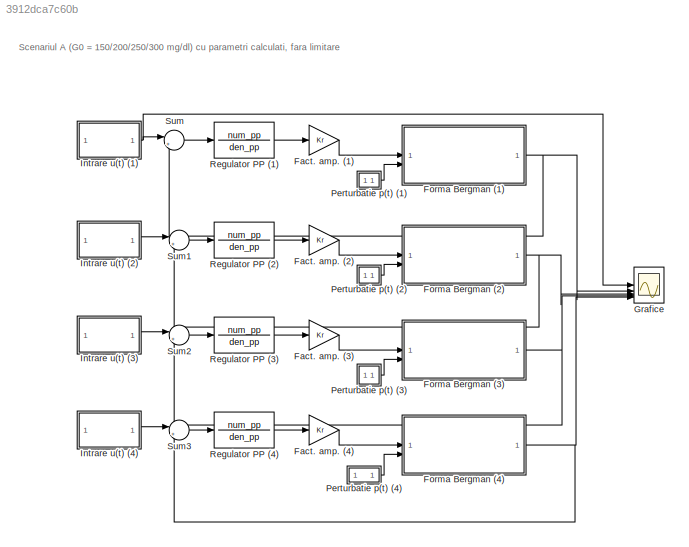
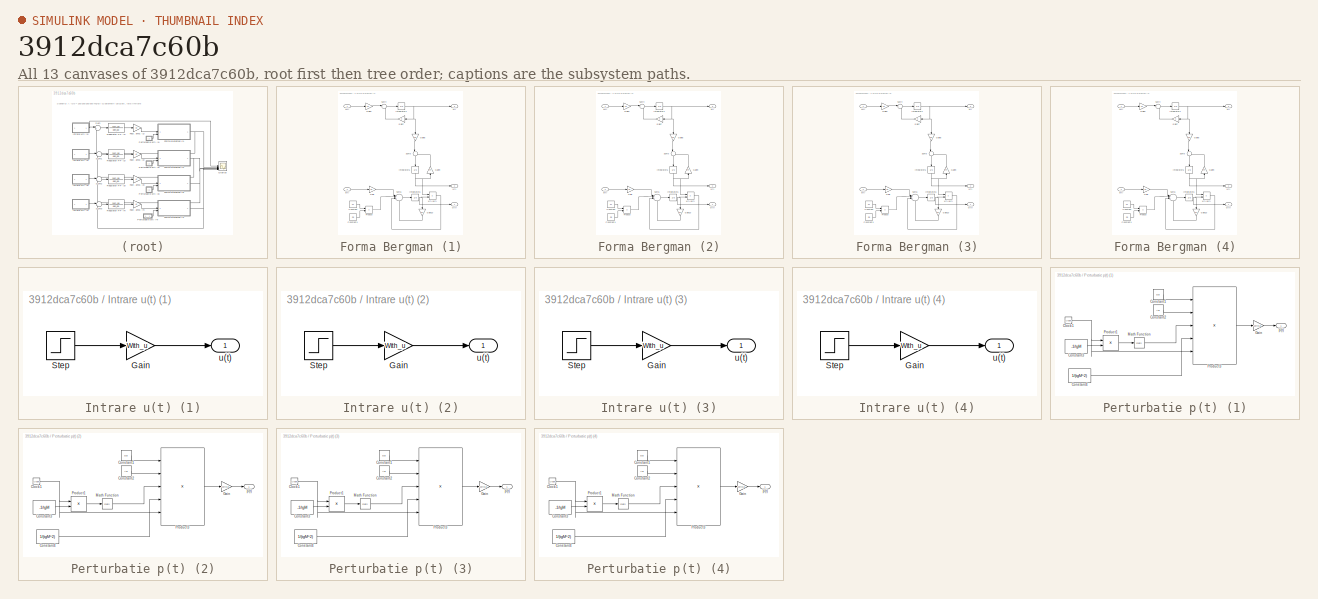
[diagram: thumbnail index - all 13 canvases of the model, root first then tree order]
MODEL slx_3912dca7c60b
KIND model
CONFIG AbsTol = auto
CONFIG EnableMultiTasking = off
CONFIG FixedStep = auto
CONFIG MaxStep = auto
CONFIG MinStep = auto
CONFIG RelTol = 1e-3
CONFIG SampleTimeConstraint = Unconstrained
CONFIG SolverName = VariableStepAuto
CONFIG StartTime = 0.0
CONFIG StopTime = 500
BLOCK [Gain] Fact. amp. (1)
  Gain = Kr
BLOCK [Gain] Fact. amp. (2)
  Gain = Kr
BLOCK [Gain] Fact. amp. (3)
  Gain = Kr
BLOCK [Gain] Fact. amp. (4)
  Gain = Kr
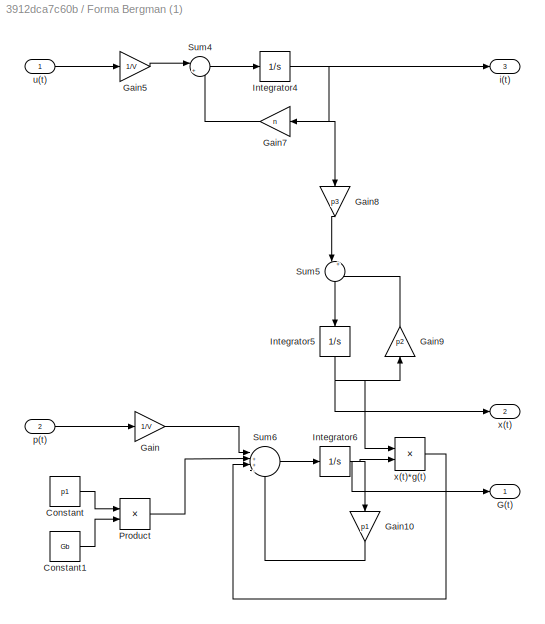
BLOCK [SubSystem] Forma Bergman (1)
BLOCK [Constant] Forma Bergman (1)/Constant
  Value = p1
BLOCK [Constant] Forma Bergman (1)/Constant1
  Value = Gb
BLOCK [Outport] Forma Bergman (1)/G(t)
BLOCK [Gain] Forma Bergman (1)/Gain
  Gain = 1/V
BLOCK [Gain] Forma Bergman (1)/Gain10
  Gain = p1
  NameLocation = left
BLOCK [Gain] Forma Bergman (1)/Gain5
  Gain = 1/V
BLOCK [Gain] Forma Bergman (1)/Gain7
  Gain = n
  NameLocation = top
BLOCK [Gain] Forma Bergman (1)/Gain8
  Gain = p3
  NameLocation = left
BLOCK [Gain] Forma Bergman (1)/Gain9
  Gain = p2
  NameLocation = right
BLOCK [Integrator] Forma Bergman (1)/Integrator4
BLOCK [Integrator] Forma Bergman (1)/Integrator5
  NameLocation = left
BLOCK [Integrator] Forma Bergman (1)/Integrator6
  InitialCondition = G0
BLOCK [Product] Forma Bergman (1)/Product
BLOCK [Sum] Forma Bergman (1)/Sum4
  Inputs = |+-
BLOCK [Sum] Forma Bergman (1)/Sum5
  Inputs = |+-
  NameLocation = left
BLOCK [Sum] Forma Bergman (1)/Sum6
  Inputs = |++--
BLOCK [Outport] Forma Bergman (1)/i(t)
  Port = 3
BLOCK [Inport] Forma Bergman (1)/p(t)
  Port = 2
BLOCK [Inport] Forma Bergman (1)/u(t)
BLOCK [Outport] Forma Bergman (1)/x(t)
  Port = 2
BLOCK [Product] Forma Bergman (1)/x(t)*g(t)
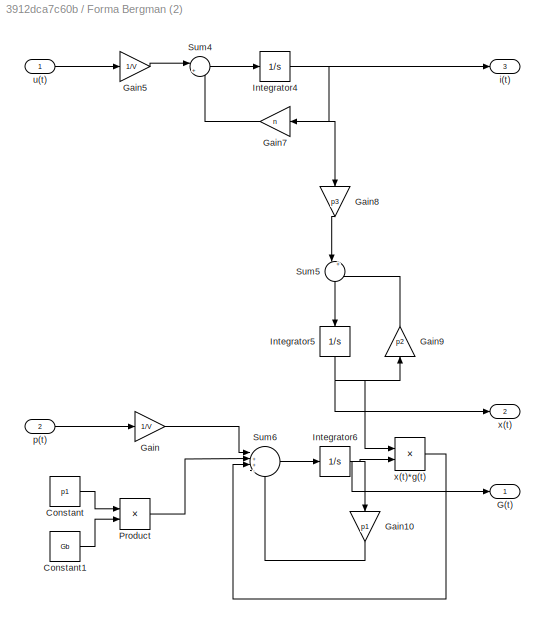
BLOCK [SubSystem] Forma Bergman (2)
BLOCK [Constant] Forma Bergman (2)/Constant
  Value = p1
BLOCK [Constant] Forma Bergman (2)/Constant1
  Value = Gb
BLOCK [Outport] Forma Bergman (2)/G(t)
BLOCK [Gain] Forma Bergman (2)/Gain
  Gain = 1/V
BLOCK [Gain] Forma Bergman (2)/Gain10
  Gain = p1
  NameLocation = left
BLOCK [Gain] Forma Bergman (2)/Gain5
  Gain = 1/V
BLOCK [Gain] Forma Bergman (2)/Gain7
  Gain = n
  NameLocation = top
BLOCK [Gain] Forma Bergman (2)/Gain8
  Gain = p3
  NameLocation = left
BLOCK [Gain] Forma Bergman (2)/Gain9
  Gain = p2
  NameLocation = right
BLOCK [Integrator] Forma Bergman (2)/Integrator4
BLOCK [Integrator] Forma Bergman (2)/Integrator5
  NameLocation = left
BLOCK [Integrator] Forma Bergman (2)/Integrator6
  InitialCondition = G0
BLOCK [Product] Forma Bergman (2)/Product
BLOCK [Sum] Forma Bergman (2)/Sum4
  Inputs = |+-
BLOCK [Sum] Forma Bergman (2)/Sum5
  Inputs = |+-
  NameLocation = left
BLOCK [Sum] Forma Bergman (2)/Sum6
  Inputs = |++--
BLOCK [Outport] Forma Bergman (2)/i(t)
  Port = 3
BLOCK [Inport] Forma Bergman (2)/p(t)
  Port = 2
BLOCK [Inport] Forma Bergman (2)/u(t)
BLOCK [Outport] Forma Bergman (2)/x(t)
  Port = 2
BLOCK [Product] Forma Bergman (2)/x(t)*g(t)
BLOCK [SubSystem] Forma Bergman (3)
BLOCK [Constant] Forma Bergman (3)/Constant
  Value = p1
BLOCK [Constant] Forma Bergman (3)/Constant1
  Value = Gb
BLOCK [Outport] Forma Bergman (3)/G(t)
BLOCK [Gain] Forma Bergman (3)/Gain
  Gain = 1/V
BLOCK [Gain] Forma Bergman (3)/Gain10
  Gain = p1
  NameLocation = left
BLOCK [Gain] Forma Bergman (3)/Gain5
  Gain = 1/V
BLOCK [Gain] Forma Bergman (3)/Gain7
  Gain = n
  NameLocation = top
BLOCK [Gain] Forma Bergman (3)/Gain8
  Gain = p3
  NameLocation = left
BLOCK [Gain] Forma Bergman (3)/Gain9
  Gain = p2
  NameLocation = right
BLOCK [Integrator] Forma Bergman (3)/Integrator4
BLOCK [Integrator] Forma Bergman (3)/Integrator5
  NameLocation = left
BLOCK [Integrator] Forma Bergman (3)/Integrator6
  InitialCondition = G0
BLOCK [Product] Forma Bergman (3)/Product
BLOCK [Sum] Forma Bergman (3)/Sum4
  Inputs = |+-
BLOCK [Sum] Forma Bergman (3)/Sum5
  Inputs = |+-
  NameLocation = left
BLOCK [Sum] Forma Bergman (3)/Sum6
  Inputs = |++--
BLOCK [Outport] Forma Bergman (3)/i(t)
  Port = 3
BLOCK [Inport] Forma Bergman (3)/p(t)
  Port = 2
BLOCK [Inport] Forma Bergman (3)/u(t)
BLOCK [Outport] Forma Bergman (3)/x(t)
  Port = 2
BLOCK [Product] Forma Bergman (3)/x(t)*g(t)
BLOCK [SubSystem] Forma Bergman (4)
BLOCK [Constant] Forma Bergman (4)/Constant
  Value = p1
BLOCK [Constant] Forma Bergman (4)/Constant1
  Value = Gb
BLOCK [Outport] Forma Bergman (4)/G(t)
BLOCK [Gain] Forma Bergman (4)/Gain
  Gain = 1/V
BLOCK [Gain] Forma Bergman (4)/Gain10
  Gain = p1
  NameLocation = left
BLOCK [Gain] Forma Bergman (4)/Gain5
  Gain = 1/V
BLOCK [Gain] Forma Bergman (4)/Gain7
  Gain = n
  NameLocation = top
BLOCK [Gain] Forma Bergman (4)/Gain8
  Gain = p3
  NameLocation = left
BLOCK [Gain] Forma Bergman (4)/Gain9
  Gain = p2
  NameLocation = right
BLOCK [Integrator] Forma Bergman (4)/Integrator4
BLOCK [Integrator] Forma Bergman (4)/Integrator5
  NameLocation = left
BLOCK [Integrator] Forma Bergman (4)/Integrator6
  InitialCondition = G0
BLOCK [Product] Forma Bergman (4)/Product
BLOCK [Sum] Forma Bergman (4)/Sum4
  Inputs = |+-
BLOCK [Sum] Forma Bergman (4)/Sum5
  Inputs = |+-
  NameLocation = left
BLOCK [Sum] Forma Bergman (4)/Sum6
  Inputs = |++--
BLOCK [Outport] Forma Bergman (4)/i(t)
  Port = 3
BLOCK [Inport] Forma Bergman (4)/p(t)
  Port = 2
BLOCK [Inport] Forma Bergman (4)/u(t)
BLOCK [Outport] Forma Bergman (4)/x(t)
  Port = 2
BLOCK [Product] Forma Bergman (4)/x(t)*g(t)
BLOCK [Scope] Grafice
  Floating = off
  NumInputPorts = 5
  ScopeSpecificationString = Simulink.scopes.TimeScopeBlockCfg('CurrentConfiguration', extmgr.ConfigurationSet(extmgr.Configuration('Core','General UI',true),extmgr.Configuration('Core','Source UI',true),extmgr.Configuration('Sources','WiredSimulink',true),extmgr.Configuration('Visuals','Time Domain',true,'SerializedDisplays',{struct('MinYLimReal','-100','MaxYLimReal','500','YLabelReal','','MinYLimMag','0.00000','MaxYLimMag',...<+1574ch>
BLOCK [SubSystem] Intrare u(t) (1)
BLOCK [Gain] Intrare u(t) (1)/Gain
  Gain = With_u
BLOCK [Step] Intrare u(t) (1)/Step
  After = Gref
  SampleTime = 0
  Time = 0
BLOCK [Outport] Intrare u(t) (1)/u(t)
BLOCK [SubSystem] Intrare u(t) (2)
BLOCK [Gain] Intrare u(t) (2)/Gain
  Gain = With_u
BLOCK [Step] Intrare u(t) (2)/Step
  After = Gref
  SampleTime = 0
  Time = 0
BLOCK [Outport] Intrare u(t) (2)/u(t)
BLOCK [SubSystem] Intrare u(t) (3)
BLOCK [Gain] Intrare u(t) (3)/Gain
  Gain = With_u
BLOCK [Step] Intrare u(t) (3)/Step
  After = Gref
  SampleTime = 0
  Time = 0
BLOCK [Outport] Intrare u(t) (3)/u(t)
BLOCK [SubSystem] Intrare u(t) (4)
BLOCK [Gain] Intrare u(t) (4)/Gain
  Gain = With_u
BLOCK [Step] Intrare u(t) (4)/Step
  After = Gref
  SampleTime = 0
  Time = 0
BLOCK [Outport] Intrare u(t) (4)/u(t)
BLOCK [SubSystem] Perturbatie p(t) (1)
BLOCK [Clock] Perturbatie p(t) (1)/Clock1
BLOCK [Constant] Perturbatie p(t) (1)/Constant1
  Value = Dg
BLOCK [Constant] Perturbatie p(t) (1)/Constant2
  Value = Ag
BLOCK [Constant] Perturbatie p(t) (1)/Constant3
  Value = -1/tgM
BLOCK [Constant] Perturbatie p(t) (1)/Constant4
  Value = 1/(tgM^2)
BLOCK [Gain] Perturbatie p(t) (1)/Gain
  Gain = With_p
BLOCK [Math] Perturbatie p(t) (1)/Math Function
  SignedPower = on
BLOCK [Product] Perturbatie p(t) (1)/Product1
BLOCK [Product] Perturbatie p(t) (1)/Product3
  Inputs = 5
BLOCK [Outport] Perturbatie p(t) (1)/p(t)
BLOCK [SubSystem] Perturbatie p(t) (2)
BLOCK [Clock] Perturbatie p(t) (2)/Clock1
BLOCK [Constant] Perturbatie p(t) (2)/Constant1
  Value = Dg
BLOCK [Constant] Perturbatie p(t) (2)/Constant2
  Value = Ag
BLOCK [Constant] Perturbatie p(t) (2)/Constant3
  Value = -1/tgM
BLOCK [Constant] Perturbatie p(t) (2)/Constant4
  Value = 1/(tgM^2)
BLOCK [Gain] Perturbatie p(t) (2)/Gain
  Gain = With_p
BLOCK [Math] Perturbatie p(t) (2)/Math Function
  SignedPower = on
BLOCK [Product] Perturbatie p(t) (2)/Product1
BLOCK [Product] Perturbatie p(t) (2)/Product3
  Inputs = 5
BLOCK [Outport] Perturbatie p(t) (2)/p(t)
BLOCK [SubSystem] Perturbatie p(t) (3)
BLOCK [Clock] Perturbatie p(t) (3)/Clock1
BLOCK [Constant] Perturbatie p(t) (3)/Constant1
  Value = Dg
BLOCK [Constant] Perturbatie p(t) (3)/Constant2
  Value = Ag
BLOCK [Constant] Perturbatie p(t) (3)/Constant3
  Value = -1/tgM
BLOCK [Constant] Perturbatie p(t) (3)/Constant4
  Value = 1/(tgM^2)
BLOCK [Gain] Perturbatie p(t) (3)/Gain
  Gain = With_p
BLOCK [Math] Perturbatie p(t) (3)/Math Function
  SignedPower = on
BLOCK [Product] Perturbatie p(t) (3)/Product1
BLOCK [Product] Perturbatie p(t) (3)/Product3
  Inputs = 5
BLOCK [Outport] Perturbatie p(t) (3)/p(t)
BLOCK [SubSystem] Perturbatie p(t) (4)
BLOCK [Clock] Perturbatie p(t) (4)/Clock1
BLOCK [Constant] Perturbatie p(t) (4)/Constant1
  Value = Dg
BLOCK [Constant] Perturbatie p(t) (4)/Constant2
  Value = Ag
BLOCK [Constant] Perturbatie p(t) (4)/Constant3
  Value = -1/tgM
BLOCK [Constant] Perturbatie p(t) (4)/Constant4
  Value = 1/(tgM^2)
BLOCK [Gain] Perturbatie p(t) (4)/Gain
  Gain = With_p
BLOCK [Math] Perturbatie p(t) (4)/Math Function
  SignedPower = on
BLOCK [Product] Perturbatie p(t) (4)/Product1
BLOCK [Product] Perturbatie p(t) (4)/Product3
  Inputs = 5
BLOCK [Outport] Perturbatie p(t) (4)/p(t)
BLOCK [TransferFcn] Regulator PP (1)
  Denominator = den_pp
  Numerator = num_pp
BLOCK [TransferFcn] Regulator PP (2)
  Denominator = den_pp
  Numerator = num_pp
BLOCK [TransferFcn] Regulator PP (3)
  Denominator = den_pp
  Numerator = num_pp
BLOCK [TransferFcn] Regulator PP (4)
  Denominator = den_pp
  Numerator = num_pp
BLOCK [Sum] Sum
  Inputs = |+-
BLOCK [Sum] Sum1
  Inputs = |+-
BLOCK [Sum] Sum2
  Inputs = |+-
BLOCK [Sum] Sum3
  Inputs = |+-
ANNOTATION (root): Scenariul A (G0 = 150/200/250/300 mg/dl) cu parametri calculati, fara limitare
LINE Fact. amp. (1):1 -> Forma Bergman (1):1
LINE Fact. amp. (2):1 -> Forma Bergman (2):1
LINE Fact. amp. (3):1 -> Forma Bergman (3):1
LINE Fact. amp. (4):1 -> Forma Bergman (4):1
LINE Forma Bergman (1)/Constant1:1 -> Forma Bergman (1)/Product:2
LINE Forma Bergman (1)/Constant:1 -> Forma Bergman (1)/Product:1
LINE Forma Bergman (1)/Gain10:1 -> Forma Bergman (1)/Sum6:4
LINE Forma Bergman (1)/Gain5:1 -> Forma Bergman (1)/Sum4:1
LINE Forma Bergman (1)/Gain7:1 -> Forma Bergman (1)/Sum4:2
LINE Forma Bergman (1)/Gain8:1 -> Forma Bergman (1)/Sum5:1
LINE Forma Bergman (1)/Gain9:1 -> Forma Bergman (1)/Sum5:2
LINE Forma Bergman (1)/Gain:1 -> Forma Bergman (1)/Sum6:1
NET Forma Bergman (1)/Integrator4:1 -> Forma Bergman (1)/Gain7:1, Forma Bergman (1)/Gain8:1, Forma Bergman (1)/i(t):1
NET Forma Bergman (1)/Integrator5:1 -> Forma Bergman (1)/Gain9:1, Forma Bergman (1)/x(t)*g(t):1, Forma Bergman (1)/x(t):1
NET Forma Bergman (1)/Integrator6:1 -> Forma Bergman (1)/G(t):1, Forma Bergman (1)/Gain10:1, Forma Bergman (1)/x(t)*g(t):2
LINE Forma Bergman (1)/Product:1 -> Forma Bergman (1)/Sum6:2
LINE Forma Bergman (1)/Sum4:1 -> Forma Bergman (1)/Integrator4:1
LINE Forma Bergman (1)/Sum5:1 -> Forma Bergman (1)/Integrator5:1
LINE Forma Bergman (1)/Sum6:1 -> Forma Bergman (1)/Integrator6:1
LINE Forma Bergman (1)/p(t):1 -> Forma Bergman (1)/Gain:1
LINE Forma Bergman (1)/u(t):1 -> Forma Bergman (1)/Gain5:1
LINE Forma Bergman (1)/x(t)*g(t):1 -> Forma Bergman (1)/Sum6:3
NET Forma Bergman (1):1 -> Grafice:2, Sum:2
LINE Forma Bergman (2)/Constant1:1 -> Forma Bergman (2)/Product:2
LINE Forma Bergman (2)/Constant:1 -> Forma Bergman (2)/Product:1
LINE Forma Bergman (2)/Gain10:1 -> Forma Bergman (2)/Sum6:4
LINE Forma Bergman (2)/Gain5:1 -> Forma Bergman (2)/Sum4:1
LINE Forma Bergman (2)/Gain7:1 -> Forma Bergman (2)/Sum4:2
LINE Forma Bergman (2)/Gain8:1 -> Forma Bergman (2)/Sum5:1
LINE Forma Bergman (2)/Gain9:1 -> Forma Bergman (2)/Sum5:2
LINE Forma Bergman (2)/Gain:1 -> Forma Bergman (2)/Sum6:1
NET Forma Bergman (2)/Integrator4:1 -> Forma Bergman (2)/Gain7:1, Forma Bergman (2)/Gain8:1, Forma Bergman (2)/i(t):1
NET Forma Bergman (2)/Integrator5:1 -> Forma Bergman (2)/Gain9:1, Forma Bergman (2)/x(t)*g(t):1, Forma Bergman (2)/x(t):1
NET Forma Bergman (2)/Integrator6:1 -> Forma Bergman (2)/G(t):1, Forma Bergman (2)/Gain10:1, Forma Bergman (2)/x(t)*g(t):2
LINE Forma Bergman (2)/Product:1 -> Forma Bergman (2)/Sum6:2
LINE Forma Bergman (2)/Sum4:1 -> Forma Bergman (2)/Integrator4:1
LINE Forma Bergman (2)/Sum5:1 -> Forma Bergman (2)/Integrator5:1
LINE Forma Bergman (2)/Sum6:1 -> Forma Bergman (2)/Integrator6:1
LINE Forma Bergman (2)/p(t):1 -> Forma Bergman (2)/Gain:1
LINE Forma Bergman (2)/u(t):1 -> Forma Bergman (2)/Gain5:1
LINE Forma Bergman (2)/x(t)*g(t):1 -> Forma Bergman (2)/Sum6:3
NET Forma Bergman (2):1 -> Grafice:3, Sum1:2
LINE Forma Bergman (3)/Constant1:1 -> Forma Bergman (3)/Product:2
LINE Forma Bergman (3)/Constant:1 -> Forma Bergman (3)/Product:1
LINE Forma Bergman (3)/Gain10:1 -> Forma Bergman (3)/Sum6:4
LINE Forma Bergman (3)/Gain5:1 -> Forma Bergman (3)/Sum4:1
LINE Forma Bergman (3)/Gain7:1 -> Forma Bergman (3)/Sum4:2
LINE Forma Bergman (3)/Gain8:1 -> Forma Bergman (3)/Sum5:1
LINE Forma Bergman (3)/Gain9:1 -> Forma Bergman (3)/Sum5:2
LINE Forma Bergman (3)/Gain:1 -> Forma Bergman (3)/Sum6:1
NET Forma Bergman (3)/Integrator4:1 -> Forma Bergman (3)/Gain7:1, Forma Bergman (3)/Gain8:1, Forma Bergman (3)/i(t):1
NET Forma Bergman (3)/Integrator5:1 -> Forma Bergman (3)/Gain9:1, Forma Bergman (3)/x(t)*g(t):1, Forma Bergman (3)/x(t):1
NET Forma Bergman (3)/Integrator6:1 -> Forma Bergman (3)/G(t):1, Forma Bergman (3)/Gain10:1, Forma Bergman (3)/x(t)*g(t):2
LINE Forma Bergman (3)/Product:1 -> Forma Bergman (3)/Sum6:2
LINE Forma Bergman (3)/Sum4:1 -> Forma Bergman (3)/Integrator4:1
LINE Forma Bergman (3)/Sum5:1 -> Forma Bergman (3)/Integrator5:1
LINE Forma Bergman (3)/Sum6:1 -> Forma Bergman (3)/Integrator6:1
LINE Forma Bergman (3)/p(t):1 -> Forma Bergman (3)/Gain:1
LINE Forma Bergman (3)/u(t):1 -> Forma Bergman (3)/Gain5:1
LINE Forma Bergman (3)/x(t)*g(t):1 -> Forma Bergman (3)/Sum6:3
NET Forma Bergman (3):1 -> Grafice:4, Sum2:2
LINE Forma Bergman (4)/Constant1:1 -> Forma Bergman (4)/Product:2
LINE Forma Bergman (4)/Constant:1 -> Forma Bergman (4)/Product:1
LINE Forma Bergman (4)/Gain10:1 -> Forma Bergman (4)/Sum6:4
LINE Forma Bergman (4)/Gain5:1 -> Forma Bergman (4)/Sum4:1
LINE Forma Bergman (4)/Gain7:1 -> Forma Bergman (4)/Sum4:2
LINE Forma Bergman (4)/Gain8:1 -> Forma Bergman (4)/Sum5:1
LINE Forma Bergman (4)/Gain9:1 -> Forma Bergman (4)/Sum5:2
LINE Forma Bergman (4)/Gain:1 -> Forma Bergman (4)/Sum6:1
NET Forma Bergman (4)/Integrator4:1 -> Forma Bergman (4)/Gain7:1, Forma Bergman (4)/Gain8:1, Forma Bergman (4)/i(t):1
NET Forma Bergman (4)/Integrator5:1 -> Forma Bergman (4)/Gain9:1, Forma Bergman (4)/x(t)*g(t):1, Forma Bergman (4)/x(t):1
NET Forma Bergman (4)/Integrator6:1 -> Forma Bergman (4)/G(t):1, Forma Bergman (4)/Gain10:1, Forma Bergman (4)/x(t)*g(t):2
LINE Forma Bergman (4)/Product:1 -> Forma Bergman (4)/Sum6:2
LINE Forma Bergman (4)/Sum4:1 -> Forma Bergman (4)/Integrator4:1
LINE Forma Bergman (4)/Sum5:1 -> Forma Bergman (4)/Integrator5:1
LINE Forma Bergman (4)/Sum6:1 -> Forma Bergman (4)/Integrator6:1
LINE Forma Bergman (4)/p(t):1 -> Forma Bergman (4)/Gain:1
LINE Forma Bergman (4)/u(t):1 -> Forma Bergman (4)/Gain5:1
LINE Forma Bergman (4)/x(t)*g(t):1 -> Forma Bergman (4)/Sum6:3
NET Forma Bergman (4):1 -> Grafice:5, Sum3:2
LINE Intrare u(t) (1)/Gain:1 -> Intrare u(t) (1)/u(t):1
LINE Intrare u(t) (1)/Step:1 -> Intrare u(t) (1)/Gain:1
NET Intrare u(t) (1):1 -> Grafice:1, Sum:1
LINE Intrare u(t) (2)/Gain:1 -> Intrare u(t) (2)/u(t):1
LINE Intrare u(t) (2)/Step:1 -> Intrare u(t) (2)/Gain:1
LINE Intrare u(t) (2):1 -> Sum1:1
LINE Intrare u(t) (3)/Gain:1 -> Intrare u(t) (3)/u(t):1
LINE Intrare u(t) (3)/Step:1 -> Intrare u(t) (3)/Gain:1
LINE Intrare u(t) (3):1 -> Sum2:1
LINE Intrare u(t) (4)/Gain:1 -> Intrare u(t) (4)/u(t):1
LINE Intrare u(t) (4)/Step:1 -> Intrare u(t) (4)/Gain:1
LINE Intrare u(t) (4):1 -> Sum3:1
NET Perturbatie p(t) (1)/Clock1:1 -> Perturbatie p(t) (1)/Product1:1, Perturbatie p(t) (1)/Product3:5
LINE Perturbatie p(t) (1)/Constant1:1 -> Perturbatie p(t) (1)/Product3:1
LINE Perturbatie p(t) (1)/Constant2:1 -> Perturbatie p(t) (1)/Product3:2
LINE Perturbatie p(t) (1)/Constant3:1 -> Perturbatie p(t) (1)/Product1:2
LINE Perturbatie p(t) (1)/Constant4:1 -> Perturbatie p(t) (1)/Product3:4
LINE Perturbatie p(t) (1)/Gain:1 -> Perturbatie p(t) (1)/p(t):1
LINE Perturbatie p(t) (1)/Math Function:1 -> Perturbatie p(t) (1)/Product3:3
LINE Perturbatie p(t) (1)/Product1:1 -> Perturbatie p(t) (1)/Math Function:1
LINE Perturbatie p(t) (1)/Product3:1 -> Perturbatie p(t) (1)/Gain:1
LINE Perturbatie p(t) (1):1 -> Forma Bergman (1):2
NET Perturbatie p(t) (2)/Clock1:1 -> Perturbatie p(t) (2)/Product1:1, Perturbatie p(t) (2)/Product3:5
LINE Perturbatie p(t) (2)/Constant1:1 -> Perturbatie p(t) (2)/Product3:1
LINE Perturbatie p(t) (2)/Constant2:1 -> Perturbatie p(t) (2)/Product3:2
LINE Perturbatie p(t) (2)/Constant3:1 -> Perturbatie p(t) (2)/Product1:2
LINE Perturbatie p(t) (2)/Constant4:1 -> Perturbatie p(t) (2)/Product3:4
LINE Perturbatie p(t) (2)/Gain:1 -> Perturbatie p(t) (2)/p(t):1
LINE Perturbatie p(t) (2)/Math Function:1 -> Perturbatie p(t) (2)/Product3:3
LINE Perturbatie p(t) (2)/Product1:1 -> Perturbatie p(t) (2)/Math Function:1
LINE Perturbatie p(t) (2)/Product3:1 -> Perturbatie p(t) (2)/Gain:1
LINE Perturbatie p(t) (2):1 -> Forma Bergman (2):2
NET Perturbatie p(t) (3)/Clock1:1 -> Perturbatie p(t) (3)/Product1:1, Perturbatie p(t) (3)/Product3:5
LINE Perturbatie p(t) (3)/Constant1:1 -> Perturbatie p(t) (3)/Product3:1
LINE Perturbatie p(t) (3)/Constant2:1 -> Perturbatie p(t) (3)/Product3:2
LINE Perturbatie p(t) (3)/Constant3:1 -> Perturbatie p(t) (3)/Product1:2
LINE Perturbatie p(t) (3)/Constant4:1 -> Perturbatie p(t) (3)/Product3:4
LINE Perturbatie p(t) (3)/Gain:1 -> Perturbatie p(t) (3)/p(t):1
LINE Perturbatie p(t) (3)/Math Function:1 -> Perturbatie p(t) (3)/Product3:3
LINE Perturbatie p(t) (3)/Product1:1 -> Perturbatie p(t) (3)/Math Function:1
LINE Perturbatie p(t) (3)/Product3:1 -> Perturbatie p(t) (3)/Gain:1
LINE Perturbatie p(t) (3):1 -> Forma Bergman (3):2
NET Perturbatie p(t) (4)/Clock1:1 -> Perturbatie p(t) (4)/Product1:1, Perturbatie p(t) (4)/Product3:5
LINE Perturbatie p(t) (4)/Constant1:1 -> Perturbatie p(t) (4)/Product3:1
LINE Perturbatie p(t) (4)/Constant2:1 -> Perturbatie p(t) (4)/Product3:2
LINE Perturbatie p(t) (4)/Constant3:1 -> Perturbatie p(t) (4)/Product1:2
LINE Perturbatie p(t) (4)/Constant4:1 -> Perturbatie p(t) (4)/Product3:4
LINE Perturbatie p(t) (4)/Gain:1 -> Perturbatie p(t) (4)/p(t):1
LINE Perturbatie p(t) (4)/Math Function:1 -> Perturbatie p(t) (4)/Product3:3
LINE Perturbatie p(t) (4)/Product1:1 -> Perturbatie p(t) (4)/Math Function:1
LINE Perturbatie p(t) (4)/Product3:1 -> Perturbatie p(t) (4)/Gain:1
LINE Perturbatie p(t) (4):1 -> Forma Bergman (4):2
LINE Regulator PP (1):1 -> Fact. amp. (1):1
LINE Regulator PP (2):1 -> Fact. amp. (2):1
LINE Regulator PP (3):1 -> Fact. amp. (3):1
LINE Regulator PP (4):1 -> Fact. amp. (4):1
LINE Sum1:1 -> Regulator PP (2):1
LINE Sum2:1 -> Regulator PP (3):1
LINE Sum3:1 -> Regulator PP (4):1
LINE Sum:1 -> Regulator PP (1):1
note: NET lines group one-source signal fan-out (src -> all destinations, sorted); 1:1 wires keep LINE
